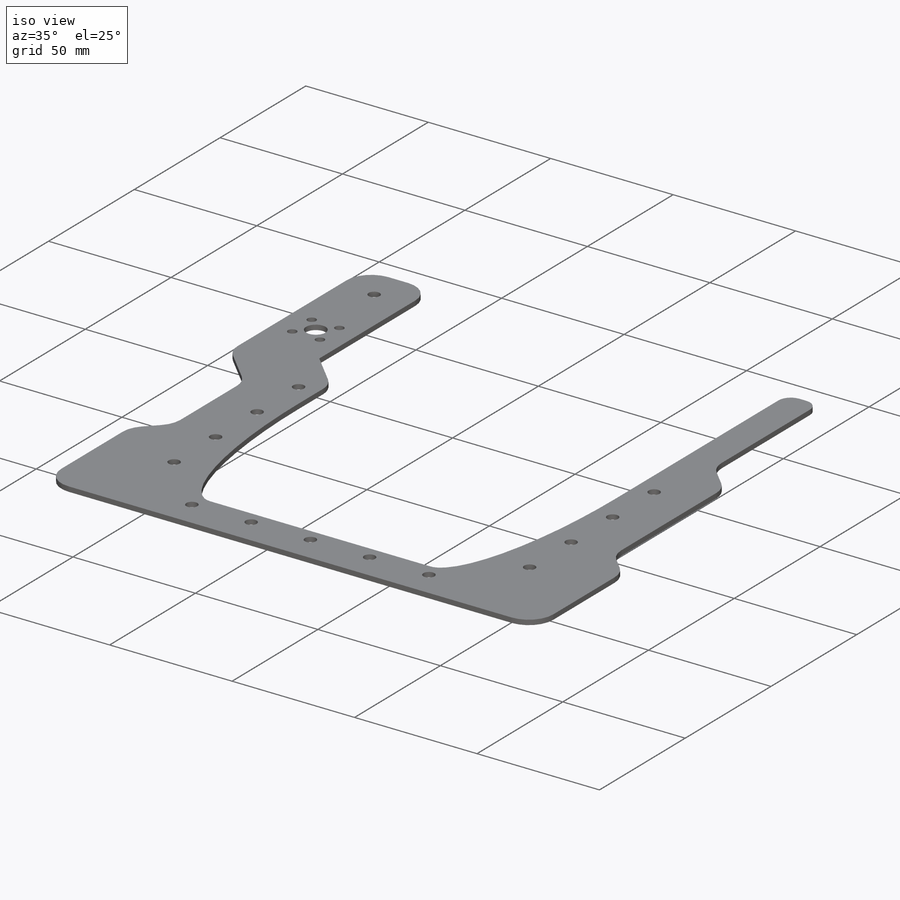
[diagram: iso view]
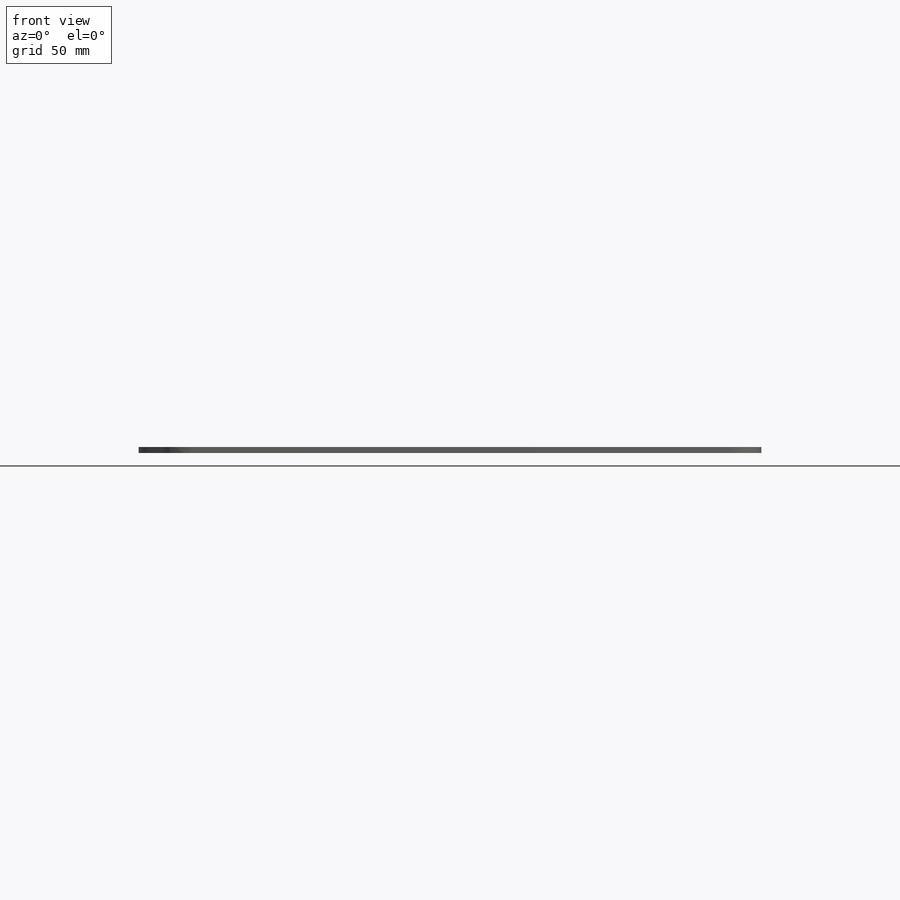
[diagram: front view]
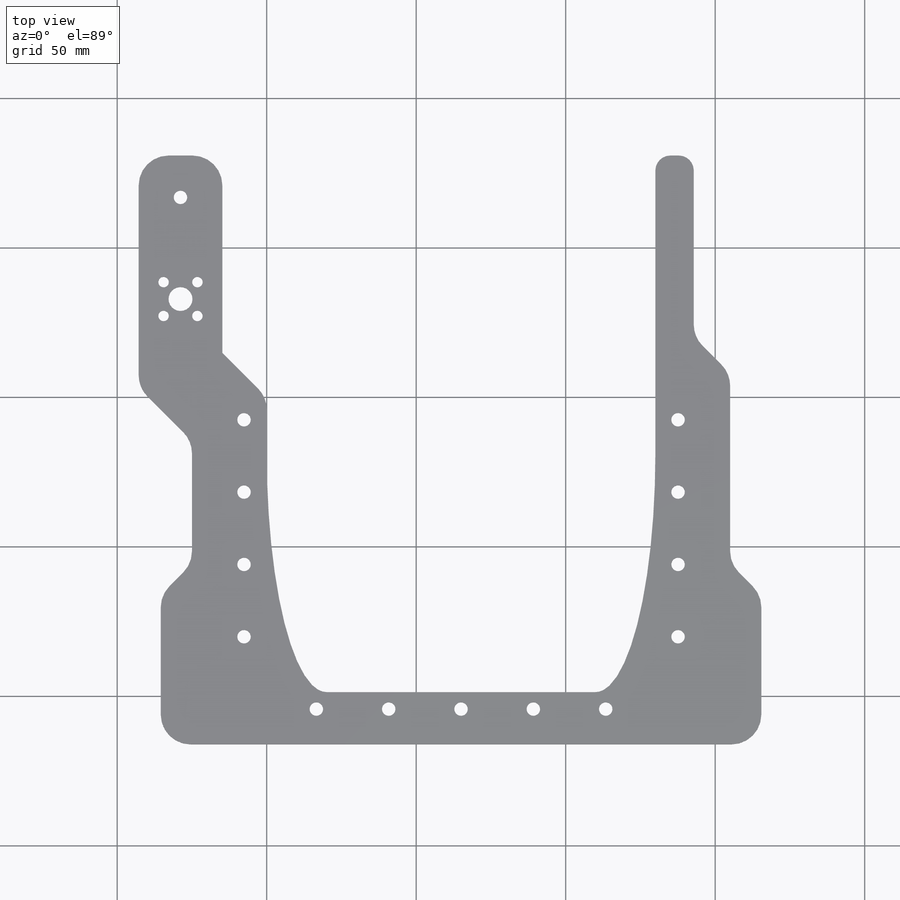
[diagram: top view]
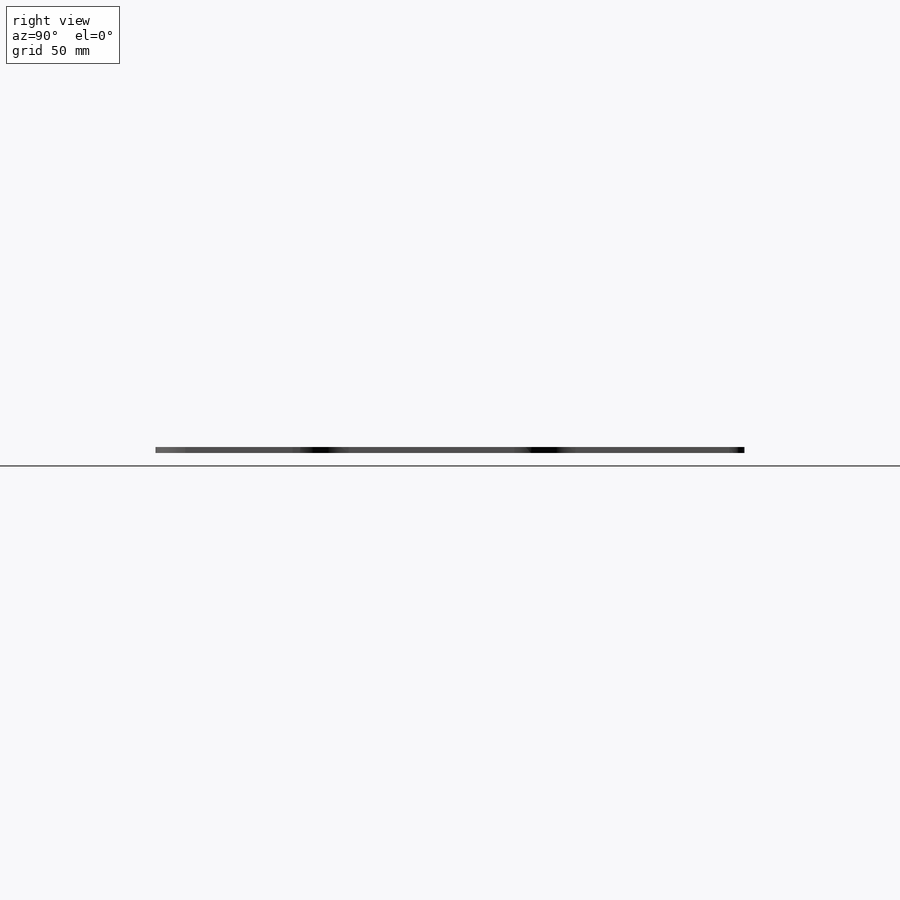
[diagram: right view]
SOLIDWORKS PART (.sldprt)
format: sldprt  version: not decoded by parser v0  size: 335,360 bytes
history: native  units: mm
features: sketch x4, extrude x2, cut_extrude x2, fillet x2, material x1 (+13 scaffold rows collapsed)
feature tree (24):
  scaffold x13  (default folders/planes/origin — collapsed)
  material  "6061-T6 (SS)"
  sketch  "Sketch1"  dims[c1.D1=200.89mm c1.D2=50.0mm c1.D3=130.0mm c1.D4=17.5mm c1.D5=148.99mm c1.D6=16.0mm c1.D7=7.39mm c1.D8=28.0mm c1.D9=~9.324077mm c2.D9=135.0deg c2.D10=180.0mm c2.D11=2.0mm c2.D12=~37.973819mm c3.D12=135.0deg c3.D13=22.61mm c3.D14=~17.826888mm c4.D14=135.0deg c4.D15=12.7mm c4.D16=25.4mm c4.D17=12.165mm c5.D17=135.0deg c5.D18=48.0mm]
  extrude  "Boss-Extrude1"  Depth=2mm
  sketch  "Sketch2"  dims[c1.D3=3.5mm c1.D6=8.0mm c1.D9=4.5mm c1.D12=4.5mm c1.D1=14.0mm c1.D2=~9.048504mm c2.D2=45.0deg c2.D4=8.0mm c2.D7=72.585mm c2.D8=36.015mm c2.D11=11.82mm c2.D10=4.0 c2.D5=4.0]
  cut_extrude  "Cut-Extrude2"  [1 undecoded]
  fillet  "Fillet1"  Radius=10mm
  sketch  "Sketch3"  dims[D1=20.0mm D2=80.0mm]
  extrude  "Boss-Extrude3"  [1 undecoded]
  fillet  "Fillet3"  Radius=5mm
  sketch  "Sketch4"  dims[D2=4.5mm D1=14.0mm D3=14.0mm]
  cut_extrude  "Cut-Extrude3"  [1 undecoded]
decode coverage: 7 of 10 modeling features carry decoded parameters
note: ~ marks probable driven/reference dimensions
note: 3 parameter values undecoded
summary: no parameter record found for 3 features
note: suppression state not decoded; provenance and decode notes live in map.json
